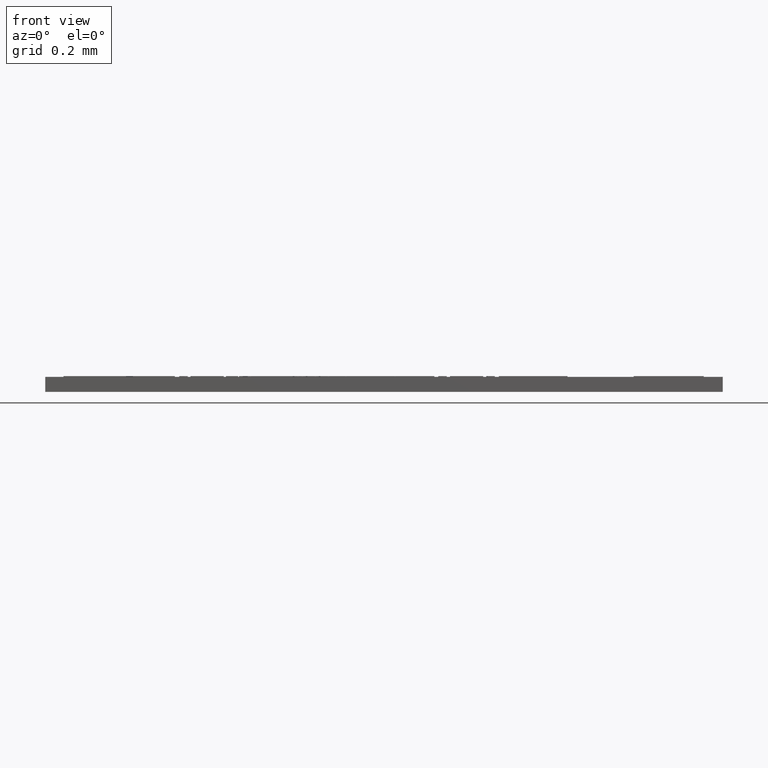
[diagram: clean part render]
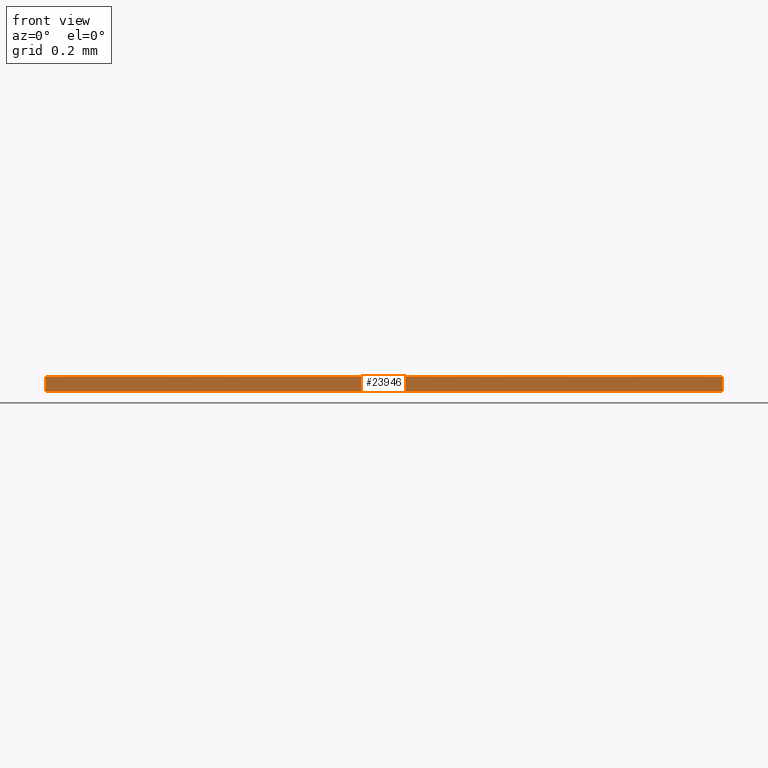
[diagram: same view with one face highlighted and labeled with its STEP entity id]
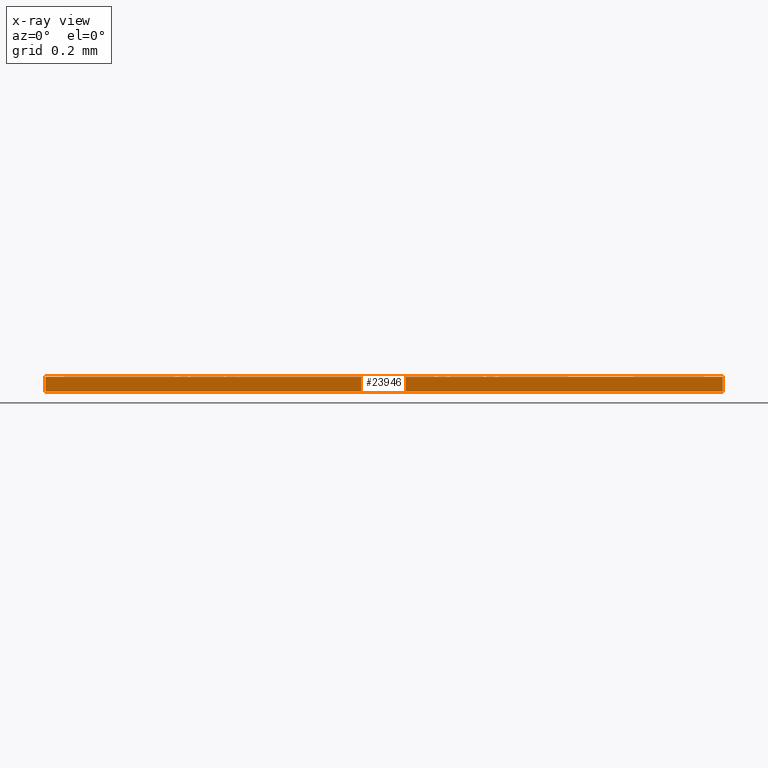
[diagram: x-ray of the same camera — body ghosted, the highlighted face saturated]
A machine part, front view. The second image highlights one B-rep face of the part: STEP entity #23946.
The next image is the same camera in x-ray: the body ghosted, the highlighted face saturated — about 0% of this face is hidden behind the body in this view.
In plain terms, the highlighted planar face has unit normal (0, -1, 0).
Its self-contained STEP definition (entity closure, byte-faithful):
#21913=CARTESIAN_POINT('',(0.0,0.0,0.001811023622047));
#21914=VERTEX_POINT('',#21913);
#21921=CARTESIAN_POINT('',(0.081889763779528,2.005721E-017,0.001811023622047));
#21922=VERTEX_POINT('',#21921);
#21923=CARTESIAN_POINT('',(0.081889763779528,2.003947E-017,0.001811023622047));
#21924=DIRECTION('',(-1.0,0.0,0.0));
#21925=VECTOR('',#21924,0.081889763779528);
#21926=LINE('',#21923,#21925);
#21927=EDGE_CURVE('',#21922,#21914,#21926,.T.);
#22793=CARTESIAN_POINT('',(0.081889763779528,2.005721E-017,0.0));
#22794=VERTEX_POINT('',#22793);
#22795=CARTESIAN_POINT('',(0.081889763779528,2.005721E-017,0.0));
#22796=DIRECTION('',(0.0,0.0,1.0));
#22797=VECTOR('',#22796,0.001811023622047);
#22798=LINE('',#22795,#22797);
#22799=EDGE_CURVE('',#22794,#21922,#22798,.T.);
#23923=CARTESIAN_POINT('',(0.081889763779528,2.005721E-017,0.0));
#23924=DIRECTION('',(0.0,-1.0,0.0));
#23925=DIRECTION('',(0.0,0.0,-1.0));
#23926=AXIS2_PLACEMENT_3D('',#23923,#23924,#23925);
#23927=PLANE('',#23926);
#23928=ORIENTED_EDGE('',*,*,#21927,.T.);
#23929=CARTESIAN_POINT('',(0.0,0.0,0.0));
#23930=VERTEX_POINT('',#23929);
#23931=CARTESIAN_POINT('',(0.0,0.0,0.0));
#23932=DIRECTION('',(0.0,0.0,1.0));
#23933=VECTOR('',#23932,0.001811023622047);
#23934=LINE('',#23931,#23933);
#23935=EDGE_CURVE('',#23930,#21914,#23934,.T.);
#23936=ORIENTED_EDGE('',*,*,#23935,.F.);
#23937=CARTESIAN_POINT('',(0.0,0.0,0.0));
#23938=DIRECTION('',(1.0,0.0,0.0));
#23939=VECTOR('',#23938,0.081889763779528);
#23940=LINE('',#23937,#23939);
#23941=EDGE_CURVE('',#23930,#22794,#23940,.T.);
#23942=ORIENTED_EDGE('',*,*,#23941,.T.);
#23943=ORIENTED_EDGE('',*,*,#22799,.T.);
#23944=EDGE_LOOP('',(#23928,#23936,#23942,#23943));
#23945=FACE_OUTER_BOUND('',#23944,.T.);
#23946=ADVANCED_FACE('',(#23945),#23927,.T.);